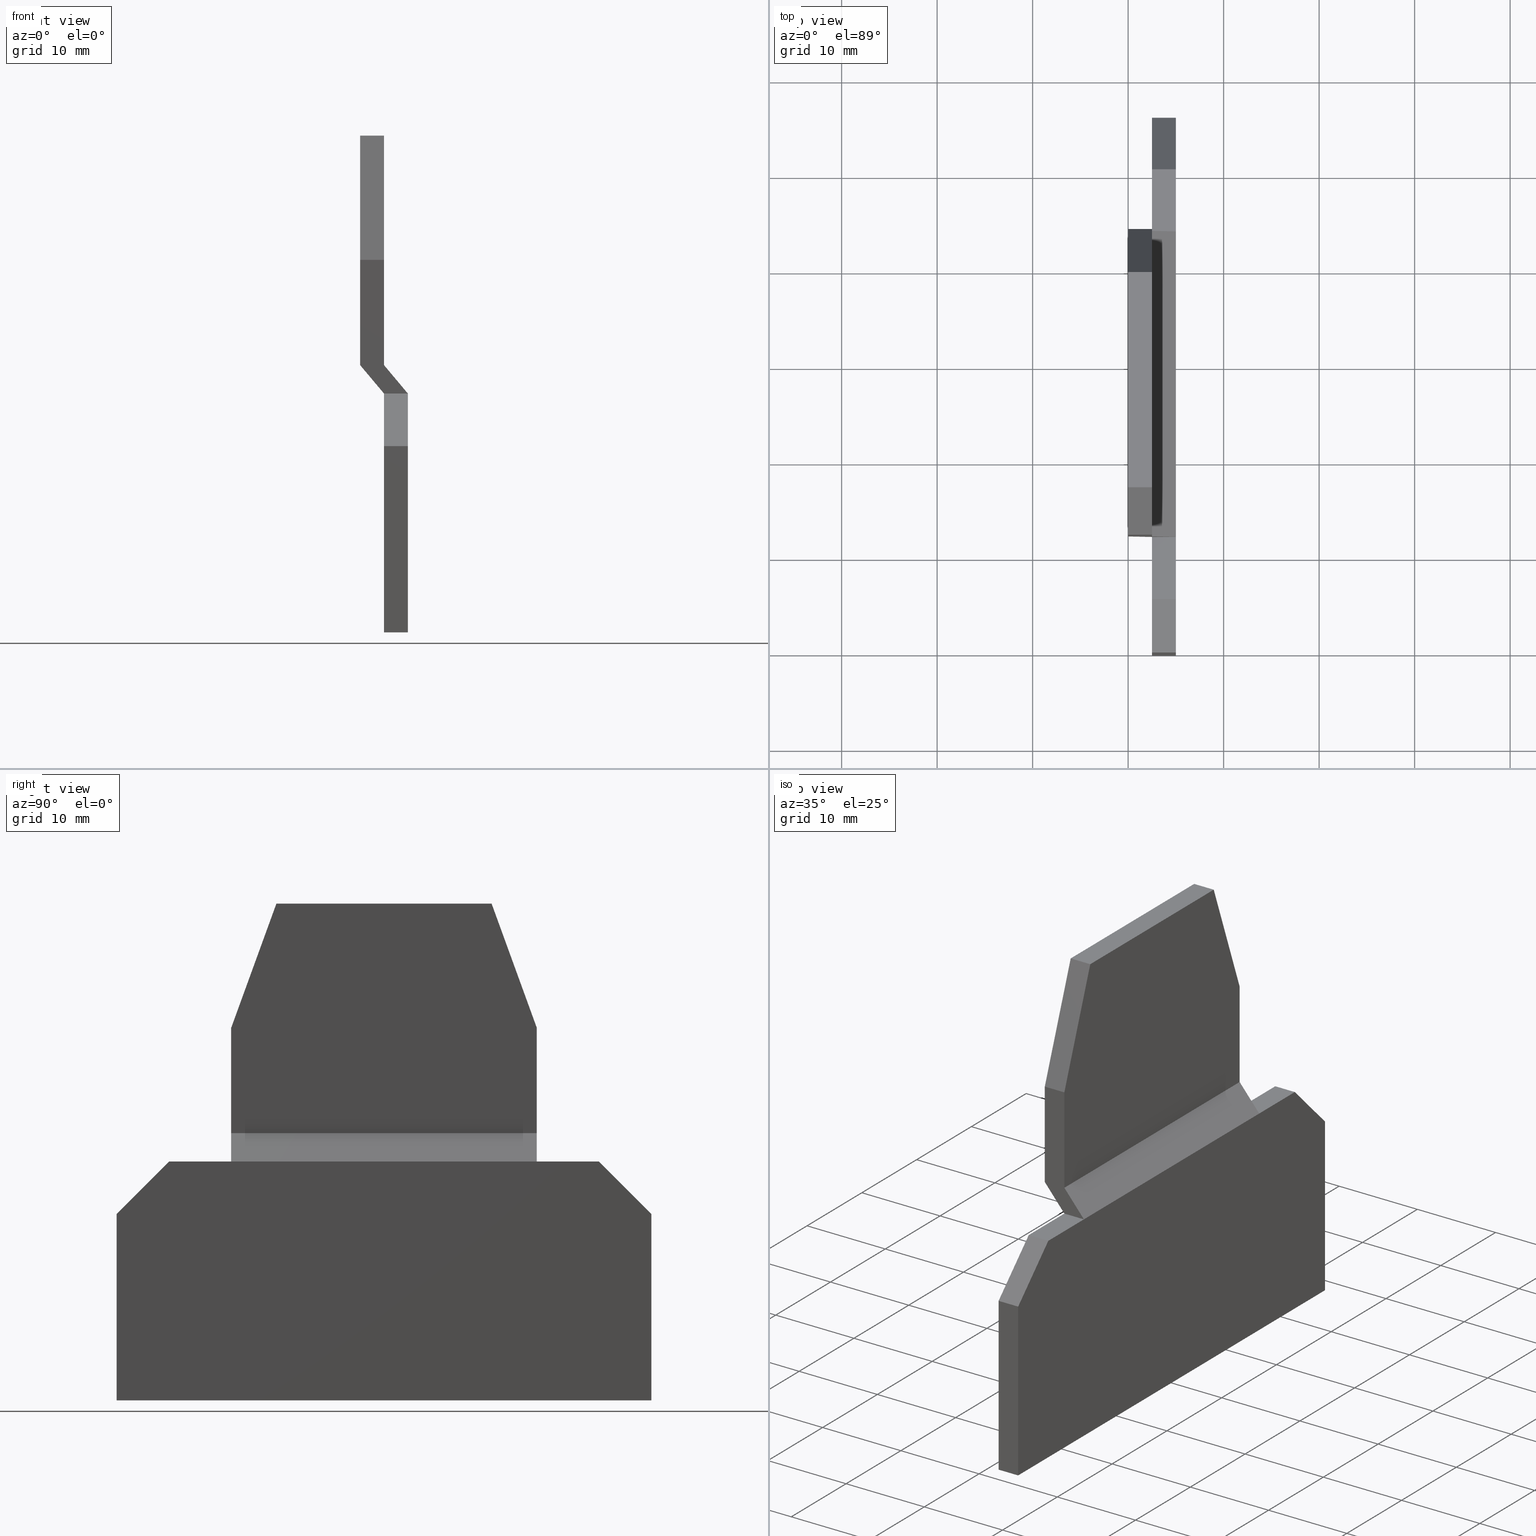
[diagram: canonical four-view strip — front | top / right | iso, engineering-drawing reading convention]
A machine part, canonical four-view strip (front | top / right | iso — engineering-drawing reading convention). The complete STEP part file that produces these views, byte-faithful:
ISO-10303-21;
HEADER;
FILE_DESCRIPTION(('Creo Elements/Direct Modeling STEP Export'),'2;1');
FILE_NAME(
'C:/temp/JobSpoolerServerData/JobServer Files/b36475c7-819c-4d4a-ab5f-5e
1cfe9fd886/work/output/model.stp','2020-06-26T15:39:03',(''),(''),
'Creo Elements/Direct Modeling STEP processor for AP214 (Solid Model)',
'Creo Elements/Direct Modeling 20.1A  29-Sep-2018 (C) Parametric Technol
ogy GmbH','');
FILE_SCHEMA(('AUTOMOTIVE_DESIGN { 1 0 10303 214 1 1 1 1 }'));
ENDSEC;
DATA;
#10=CARTESIAN_POINT('',(-5.33730665307594,34.6157933123737,
4.88498130835069E-15));
#20=DIRECTION('',(-0.,0.,1.));
#30=DIRECTION('',(0.,-1.,0.));
#40=AXIS2_PLACEMENT_3D('',#10,#20,#30);
#50=PLANE('',#40);
#60=CARTESIAN_POINT('',(0.00115534692405816,58.6364093308882,
4.88498130835069E-15));
#70=DIRECTION('',(-1.,0.,0.));
#80=VECTOR('',#70,1.);
#90=LINE('',#60,#80);
#100=CARTESIAN_POINT('',(33.9310803014635,58.6364093308882,
4.88498130835069E-15));
#110=VERTEX_POINT('',#100);
#120=CARTESIAN_POINT('',(11.3943063923844,58.6364093308882,
4.88498130835069E-15));
#130=VERTEX_POINT('',#120);
#140=EDGE_CURVE('',#110,#130,#90,.T.);
#150=ORIENTED_EDGE('',*,*,#140,.T.);
#160=CARTESIAN_POINT('',(55.2709350296005,0.00564033088821247,
4.88498130835069E-15));
#170=DIRECTION('',(-0.342020143325662,0.939692620785911,0.));
#180=VECTOR('',#170,1.);
#190=LINE('',#160,#180);
#200=CARTESIAN_POINT('',(38.6626933469241,45.6364093308882,
4.88498130835069E-15));
#210=VERTEX_POINT('',#200);
#220=EDGE_CURVE('',#210,#110,#190,.T.);
#230=ORIENTED_EDGE('',*,*,#220,.T.);
#240=CARTESIAN_POINT('',(38.6626933469241,0.00564033088821247,
4.88498130835069E-15));
#250=DIRECTION('',(0.,1.,0.));
#260=VECTOR('',#250,1.);
#270=LINE('',#240,#260);
#280=CARTESIAN_POINT('',(38.6626933469241,34.6157933123737,
4.88498130835069E-15));
#290=VERTEX_POINT('',#280);
#300=EDGE_CURVE('',#290,#210,#270,.T.);
#310=ORIENTED_EDGE('',*,*,#300,.T.);
#320=CARTESIAN_POINT('',(-5.33730665307594,34.6157933123737,
4.88498130835069E-15));
#330=DIRECTION('',(1.,0.,0.));
#340=VECTOR('',#330,1.);
#350=LINE('',#320,#340);
#360=CARTESIAN_POINT('',(6.66269334692405,34.6157933123737,
4.88498130835069E-15));
#370=VERTEX_POINT('',#360);
#380=EDGE_CURVE('',#370,#290,#350,.T.);
#390=ORIENTED_EDGE('',*,*,#380,.T.);
#400=CARTESIAN_POINT('',(6.66269334692405,0.00564033088821247,
4.88498130835069E-15));
#410=DIRECTION('',(0.,-1.,0.));
#420=VECTOR('',#410,1.);
#430=LINE('',#400,#420);
#440=CARTESIAN_POINT('',(6.66269334692405,45.6364093308882,
4.88498130835069E-15));
#450=VERTEX_POINT('',#440);
#460=EDGE_CURVE('',#450,#370,#430,.T.);
#470=ORIENTED_EDGE('',*,*,#460,.T.);
#480=CARTESIAN_POINT('',(-9.94554833575273,0.00564033088821247,
4.88498130835069E-15));
#490=DIRECTION('',(-0.342020143325662,-0.939692620785911,0.));
#500=VECTOR('',#490,1.);
#510=LINE('',#480,#500);
#520=EDGE_CURVE('',#130,#450,#510,.T.);
#530=ORIENTED_EDGE('',*,*,#520,.T.);
#540=EDGE_LOOP('',(#530,#470,#390,#310,#230,#150));
#550=FACE_OUTER_BOUND('',#540,.T.);
#560=ADVANCED_FACE('',(#550),#50,.T.);
#570=COLOUR_RGB('',0.560784339904785,0.588235318660736,0.600000023841858
);
#580=FILL_AREA_STYLE_COLOUR('',#570);
#590=FILL_AREA_STYLE('',(#580));
#600=SURFACE_STYLE_FILL_AREA(#590);
#610=SURFACE_SIDE_STYLE('',(#600));
#620=SURFACE_STYLE_USAGE(.BOTH.,#610);
#630=PRESENTATION_STYLE_ASSIGNMENT((#620));
#640=CARTESIAN_POINT('',(-5.33730665307594,31.6364093308882,-2.5));
#650=DIRECTION('',(0.,-0.642787609686539,0.766044443118978));
#660=DIRECTION('',(0.,-0.766044443118978,-0.642787609686539));
#670=AXIS2_PLACEMENT_3D('',#640,#650,#660);
#680=PLANE('',#670);
#690=ORIENTED_EDGE('',*,*,#380,.F.);
#700=CARTESIAN_POINT('',(38.6626933469241,0.00564033088821247,
-29.0413666017537));
#710=DIRECTION('',(0.,0.766044443118978,0.642787609686539));
#720=VECTOR('',#710,1.);
#730=LINE('',#700,#720);
#740=CARTESIAN_POINT('',(38.6626933469241,31.6364093308882,-2.5));
#750=VERTEX_POINT('',#740);
#760=EDGE_CURVE('',#750,#290,#730,.T.);
#770=ORIENTED_EDGE('',*,*,#760,.T.);
#780=CARTESIAN_POINT('',(-5.33730665307594,31.6364093308882,-2.5));
#790=DIRECTION('',(1.,0.,0.));
#800=VECTOR('',#790,1.);
#810=LINE('',#780,#800);
#820=CARTESIAN_POINT('',(6.66269334692405,31.6364093308882,-2.5));
#830=VERTEX_POINT('',#820);
#840=EDGE_CURVE('',#830,#750,#810,.T.);
#850=ORIENTED_EDGE('',*,*,#840,.T.);
#860=CARTESIAN_POINT('',(6.66269334692405,0.00564033088821247,
-29.0413666017537));
#870=DIRECTION('',(0.,-0.766044443118978,-0.642787609686539));
#880=VECTOR('',#870,1.);
#890=LINE('',#860,#880);
#900=EDGE_CURVE('',#370,#830,#890,.T.);
#910=ORIENTED_EDGE('',*,*,#900,.T.);
#920=EDGE_LOOP('',(#910,#850,#770,#690));
#930=FACE_OUTER_BOUND('',#920,.T.);
#940=ADVANCED_FACE('',(#930),#680,.T.);
#950=COLOUR_RGB('',0.560784339904785,0.588235318660736,0.600000023841858
);
#960=FILL_AREA_STYLE_COLOUR('',#950);
#970=FILL_AREA_STYLE('',(#960));
#980=SURFACE_STYLE_FILL_AREA(#970);
#990=SURFACE_SIDE_STYLE('',(#980));
#1000=SURFACE_STYLE_USAGE(.BOTH.,#990);
#1010=PRESENTATION_STYLE_ASSIGNMENT((#1000));
#1020=CARTESIAN_POINT('',(-5.33730665307594,34.6157933123737,-2.5));
#1030=DIRECTION('',(0.,0.642787609686539,-0.766044443118978));
#1040=DIRECTION('',(0.,0.766044443118978,0.642787609686539));
#1050=AXIS2_PLACEMENT_3D('',#1020,#1030,#1040);
#1060=PLANE('',#1050);
#1070=CARTESIAN_POINT('',(-5.33730665307594,31.6364093308882,-5.));
#1080=DIRECTION('',(1.,0.,0.));
#1090=VECTOR('',#1080,1.);
#1100=LINE('',#1070,#1090);
#1110=CARTESIAN_POINT('',(6.66269334692405,31.6364093308882,-5.));
#1120=VERTEX_POINT('',#1110);
#1130=CARTESIAN_POINT('',(38.6626933469241,31.6364093308882,-5.));
#1140=VERTEX_POINT('',#1130);
#1150=EDGE_CURVE('',#1120,#1140,#1100,.T.);
#1160=ORIENTED_EDGE('',*,*,#1150,.F.);
#1170=CARTESIAN_POINT('',(38.6626933469241,0.00564033088821247,
-31.5413666017537));
#1180=DIRECTION('',(0.,-0.766044443118978,-0.642787609686539));
#1190=VECTOR('',#1180,1.);
#1200=LINE('',#1170,#1190);
#1210=CARTESIAN_POINT('',(38.6626933469241,34.6157933123737,-2.5));
#1220=VERTEX_POINT('',#1210);
#1230=EDGE_CURVE('',#1220,#1140,#1200,.T.);
#1240=ORIENTED_EDGE('',*,*,#1230,.T.);
#1250=CARTESIAN_POINT('',(-5.33730665307594,34.6157933123737,-2.5));
#1260=DIRECTION('',(1.,0.,0.));
#1270=VECTOR('',#1260,1.);
#1280=LINE('',#1250,#1270);
#1290=CARTESIAN_POINT('',(6.66269334692405,34.6157933123737,-2.5));
#1300=VERTEX_POINT('',#1290);
#1310=EDGE_CURVE('',#1300,#1220,#1280,.T.);
#1320=ORIENTED_EDGE('',*,*,#1310,.T.);
#1330=CARTESIAN_POINT('',(6.66269334692405,0.00564033088821247,
-31.5413666017537));
#1340=DIRECTION('',(0.,0.766044443118978,0.642787609686539));
#1350=VECTOR('',#1340,1.);
#1360=LINE('',#1330,#1350);
#1370=EDGE_CURVE('',#1120,#1300,#1360,.T.);
#1380=ORIENTED_EDGE('',*,*,#1370,.T.);
#1390=EDGE_LOOP('',(#1380,#1320,#1240,#1160));
#1400=FACE_OUTER_BOUND('',#1390,.T.);
#1410=ADVANCED_FACE('',(#1400),#1060,.T.);
#1420=COLOUR_RGB('',0.560784339904785,0.588235318660736,
0.600000023841858);
#1430=FILL_AREA_STYLE_COLOUR('',#1420);
#1440=FILL_AREA_STYLE('',(#1430));
#1450=SURFACE_STYLE_FILL_AREA(#1440);
#1460=SURFACE_SIDE_STYLE('',(#1450));
#1470=SURFACE_STYLE_USAGE(.BOTH.,#1460);
#1480=PRESENTATION_STYLE_ASSIGNMENT((#1470));
#1490=CARTESIAN_POINT('',(34.1705653840396,57.9784294742139,-5.5000024))
;
#1500=DIRECTION('',(0.939692620785911,0.342020143325662,0.));
#1510=DIRECTION('',(0.342020143325662,-0.939692620785911,0.));
#1520=AXIS2_PLACEMENT_3D('',#1490,#1500,#1510);
#1530=PLANE('',#1520);
#1540=CARTESIAN_POINT('',(33.9310803014635,58.6364093308882,
3.99680288865056E-15));
#1550=DIRECTION('',(0.,0.,1.));
#1560=VECTOR('',#1550,1.);
#1570=LINE('',#1540,#1560);
#1580=CARTESIAN_POINT('',(33.9310803014635,58.6364093308882,-2.5));
#1590=VERTEX_POINT('',#1580);
#1600=EDGE_CURVE('',#1590,#110,#1570,.T.);
#1610=ORIENTED_EDGE('',*,*,#1600,.T.);
#1620=CARTESIAN_POINT('',(55.2709350296005,0.00564033088821247,-2.5));
#1630=DIRECTION('',(-0.342020143325662,0.939692620785911,0.));
#1640=VECTOR('',#1630,1.);
#1650=LINE('',#1620,#1640);
#1660=CARTESIAN_POINT('',(38.662693346924,45.6364093308882,-2.5));
#1670=VERTEX_POINT('',#1660);
#1680=EDGE_CURVE('',#1670,#1590,#1650,.T.);
#1690=ORIENTED_EDGE('',*,*,#1680,.T.);
#1700=CARTESIAN_POINT('',(38.6626933469241,45.6364093308882,-5.5000024))
;
#1710=DIRECTION('',(0.,0.,1.));
#1720=VECTOR('',#1710,1.);
#1730=LINE('',#1700,#1720);
#1740=EDGE_CURVE('',#1670,#210,#1730,.T.);
#1750=ORIENTED_EDGE('',*,*,#1740,.F.);
#1760=ORIENTED_EDGE('',*,*,#220,.F.);
#1770=EDGE_LOOP('',(#1760,#1750,#1690,#1610));
#1780=FACE_OUTER_BOUND('',#1770,.T.);
#1790=ADVANCED_FACE('',(#1780),#1530,.T.);
#1800=COLOUR_RGB('',0.560784339904785,0.588235318660736,
0.600000023841858);
#1810=FILL_AREA_STYLE_COLOUR('',#1800);
#1820=FILL_AREA_STYLE('',(#1810));
#1830=SURFACE_STYLE_FILL_AREA(#1820);
#1840=SURFACE_SIDE_STYLE('',(#1830));
#1850=SURFACE_STYLE_USAGE(.BOTH.,#1840);
#1860=PRESENTATION_STYLE_ASSIGNMENT((#1850));
#1870=CARTESIAN_POINT('',(50.6626933469241,23.8926663308882,-2.5));
#1880=DIRECTION('',(1.,0.,0.));
#1890=DIRECTION('',(0.,-1.,0.));
#1900=AXIS2_PLACEMENT_3D('',#1870,#1880,#1890);
#1910=PLANE('',#1900);
#1920=CARTESIAN_POINT('',(50.6626933469241,26.1364093308882,-2.5));
#1930=DIRECTION('',(0.,0.,-1.));
#1940=VECTOR('',#1930,1.);
#1950=LINE('',#1920,#1940);
#1960=CARTESIAN_POINT('',(50.6626933469241,26.1364093308882,-2.5));
#1970=VERTEX_POINT('',#1960);
#1980=CARTESIAN_POINT('',(50.6626933469241,26.1364093308882,-5.));
#1990=VERTEX_POINT('',#1980);
#2000=EDGE_CURVE('',#1970,#1990,#1950,.T.);
#2010=ORIENTED_EDGE('',*,*,#2000,.F.);
#2020=CARTESIAN_POINT('',(50.6626933469241,0.00564033088821247,-5.));
#2030=DIRECTION('',(0.,-1.,0.));
#2040=VECTOR('',#2030,1.);
#2050=LINE('',#2020,#2040);
#2060=CARTESIAN_POINT('',(50.6626933469241,6.63640933088821,-5.));
#2070=VERTEX_POINT('',#2060);
#2080=EDGE_CURVE('',#1990,#2070,#2050,.T.);
#2090=ORIENTED_EDGE('',*,*,#2080,.F.);
#2100=CARTESIAN_POINT('',(50.6626933469241,6.63640933088821,
3.99680288865056E-15));
#2110=DIRECTION('',(0.,0.,1.));
#2120=VECTOR('',#2110,1.);
#2130=LINE('',#2100,#2120);
#2140=CARTESIAN_POINT('',(50.6626933469241,6.63640933088821,-2.5));
#2150=VERTEX_POINT('',#2140);
#2160=EDGE_CURVE('',#2070,#2150,#2130,.T.);
#2170=ORIENTED_EDGE('',*,*,#2160,.F.);
#2180=CARTESIAN_POINT('',(50.6626933469241,16.0566153308882,-2.5));
#2190=DIRECTION('',(0.,1.,0.));
#2200=VECTOR('',#2190,1.);
#2210=LINE('',#2180,#2200);
#2220=EDGE_CURVE('',#2150,#1970,#2210,.T.);
#2230=ORIENTED_EDGE('',*,*,#2220,.F.);
#2240=EDGE_LOOP('',(#2230,#2170,#2090,#2010));
#2250=FACE_OUTER_BOUND('',#2240,.T.);
#2260=ADVANCED_FACE('',(#2250),#1910,.T.);
#2270=COLOUR_RGB('',0.560784339904785,0.588235318660736,
0.600000023841858);
#2280=FILL_AREA_STYLE_COLOUR('',#2270);
#2290=FILL_AREA_STYLE('',(#2280));
#2300=SURFACE_STYLE_FILL_AREA(#2290);
#2310=SURFACE_SIDE_STYLE('',(#2300));
#2320=SURFACE_STYLE_USAGE(.BOTH.,#2310);
#2330=PRESENTATION_STYLE_ASSIGNMENT((#2320));
#2340=CARTESIAN_POINT('',(12.0945139305945,58.6364093308882,-5.5000024))
;
#2350=DIRECTION('',(-0.,1.,0.));
#2360=DIRECTION('',(1.,0.,0.));
#2370=AXIS2_PLACEMENT_3D('',#2340,#2350,#2360);
#2380=PLANE('',#2370);
#2390=CARTESIAN_POINT('',(11.3943063923844,58.6364093308882,
3.99680288865056E-15));
#2400=DIRECTION('',(0.,0.,-1.));
#2410=VECTOR('',#2400,1.);
#2420=LINE('',#2390,#2410);
#2430=CARTESIAN_POINT('',(11.3943063923844,58.6364093308882,-2.5));
#2440=VERTEX_POINT('',#2430);
#2450=EDGE_CURVE('',#130,#2440,#2420,.T.);
#2460=ORIENTED_EDGE('',*,*,#2450,.F.);
#2470=CARTESIAN_POINT('',(0.00115534692405816,58.6364093308882,-2.5));
#2480=DIRECTION('',(-1.,0.,0.));
#2490=VECTOR('',#2480,1.);
#2500=LINE('',#2470,#2490);
#2510=EDGE_CURVE('',#1590,#2440,#2500,.T.);
#2520=ORIENTED_EDGE('',*,*,#2510,.T.);
#2530=ORIENTED_EDGE('',*,*,#1600,.F.);
#2540=ORIENTED_EDGE('',*,*,#140,.F.);
#2550=EDGE_LOOP('',(#2540,#2530,#2520,#2460));
#2560=FACE_OUTER_BOUND('',#2550,.T.);
#2570=ADVANCED_FACE('',(#2560),#2380,.T.);
#2580=COLOUR_RGB('',0.560784339904785,0.588235318660736,
0.600000023841858);
#2590=FILL_AREA_STYLE_COLOUR('',#2580);
#2600=FILL_AREA_STYLE('',(#2590));
#2610=SURFACE_STYLE_FILL_AREA(#2600);
#2620=SURFACE_SIDE_STYLE('',(#2610));
#2630=SURFACE_STYLE_USAGE(.BOTH.,#2620);
#2640=PRESENTATION_STYLE_ASSIGNMENT((#2630));
#2650=CARTESIAN_POINT('',(38.6626933469241,45.6364093308882,-5.5000024))
;
#2660=DIRECTION('',(1.,0.,0.));
#2670=DIRECTION('',(0.,-1.,0.));
#2680=AXIS2_PLACEMENT_3D('',#2650,#2660,#2670);
#2690=PLANE('',#2680);
#2700=ORIENTED_EDGE('',*,*,#1740,.T.);
#2710=CARTESIAN_POINT('',(38.6626933469241,0.00564033088821247,-2.5));
#2720=DIRECTION('',(0.,1.,0.));
#2730=VECTOR('',#2720,1.);
#2740=LINE('',#2710,#2730);
#2750=EDGE_CURVE('',#1220,#1670,#2740,.T.);
#2760=ORIENTED_EDGE('',*,*,#2750,.T.);
#2770=ORIENTED_EDGE('',*,*,#1230,.F.);
#2780=CARTESIAN_POINT('',(38.6626933469241,31.6364093308882,-5.5000024))
;
#2790=DIRECTION('',(0.,0.,1.));
#2800=VECTOR('',#2790,1.);
#2810=LINE('',#2780,#2800);
#2820=EDGE_CURVE('',#1140,#750,#2810,.T.);
#2830=ORIENTED_EDGE('',*,*,#2820,.F.);
#2840=ORIENTED_EDGE('',*,*,#760,.F.);
#2850=ORIENTED_EDGE('',*,*,#300,.F.);
#2860=EDGE_LOOP('',(#2850,#2840,#2830,#2770,#2760,#2700));
#2870=FACE_OUTER_BOUND('',#2860,.T.);
#2880=ADVANCED_FACE('',(#2870),#2690,.T.);
#2890=COLOUR_RGB('',0.560784339904785,0.588235318660736,
0.600000023841858);
#2900=FILL_AREA_STYLE_COLOUR('',#2890);
#2910=FILL_AREA_STYLE('',(#2900));
#2920=SURFACE_STYLE_FILL_AREA(#2910);
#2930=SURFACE_SIDE_STYLE('',(#2920));
#2940=SURFACE_STYLE_USAGE(.BOTH.,#2930);
#2950=PRESENTATION_STYLE_ASSIGNMENT((#2940));
#2960=CARTESIAN_POINT('',(50.6626933469241,26.1364093308882,-2.5));
#2970=DIRECTION('',(0.707106781186547,0.707106781186548,0.));
#2980=DIRECTION('',(0.707106781186548,-0.707106781186547,0.));
#2990=AXIS2_PLACEMENT_3D('',#2960,#2970,#2980);
#3000=PLANE('',#2990);
#3010=CARTESIAN_POINT('',(45.1626933469241,31.6364093308882,-2.5));
#3020=DIRECTION('',(0.,0.,-1.));
#3030=VECTOR('',#3020,1.);
#3040=LINE('',#3010,#3030);
#3050=CARTESIAN_POINT('',(45.162693346924,31.6364093308882,-2.5));
#3060=VERTEX_POINT('',#3050);
#3070=CARTESIAN_POINT('',(45.1626933469241,31.6364093308882,-5.));
#3080=VERTEX_POINT('',#3070);
#3090=EDGE_CURVE('',#3060,#3080,#3040,.T.);
#3100=ORIENTED_EDGE('',*,*,#3090,.F.);
#3110=CARTESIAN_POINT('',(45.1626933469241,31.6364093308882,-5.));
#3120=DIRECTION('',(0.707106781186548,-0.707106781186547,0.));
#3130=VECTOR('',#3120,1.);
#3140=LINE('',#3110,#3130);
#3150=EDGE_CURVE('',#3080,#1990,#3140,.T.);
#3160=ORIENTED_EDGE('',*,*,#3150,.F.);
#3170=ORIENTED_EDGE('',*,*,#2000,.T.);
#3180=CARTESIAN_POINT('',(45.1626933469241,31.6364093308882,-2.5));
#3190=DIRECTION('',(0.707106781186548,-0.707106781186547,0.));
#3200=VECTOR('',#3190,1.);
#3210=LINE('',#3180,#3200);
#3220=EDGE_CURVE('',#3060,#1970,#3210,.T.);
#3230=ORIENTED_EDGE('',*,*,#3220,.T.);
#3240=EDGE_LOOP('',(#3230,#3170,#3160,#3100));
#3250=FACE_OUTER_BOUND('',#3240,.T.);
#3260=ADVANCED_FACE('',(#3250),#3000,.T.);
#3270=COLOUR_RGB('',0.560784339904785,0.588235318660736,
0.600000023841858);
#3280=FILL_AREA_STYLE_COLOUR('',#3270);
#3290=FILL_AREA_STYLE('',(#3280));
#3300=SURFACE_STYLE_FILL_AREA(#3290);
#3310=SURFACE_SIDE_STYLE('',(#3300));
#3320=SURFACE_STYLE_USAGE(.BOTH.,#3310);
#3330=PRESENTATION_STYLE_ASSIGNMENT((#3320));
#3340=CARTESIAN_POINT('',(-5.33730665307595,7.63640933088821,-5.5000024)
);
#3350=DIRECTION('',(-1.,-1.61300449272099E-14,-0.));
#3360=DIRECTION('',(-1.61300449272099E-14,1.,0.));
#3370=AXIS2_PLACEMENT_3D('',#3340,#3350,#3360);
#3380=PLANE('',#3370);
#3390=CARTESIAN_POINT('',(-5.33730665307607,26.1364093308882,-2.5));
#3400=DIRECTION('',(0.,0.,-1.));
#3410=VECTOR('',#3400,1.);
#3420=LINE('',#3390,#3410);
#3430=CARTESIAN_POINT('',(-5.33730665307625,26.136409330888,-2.5));
#3440=VERTEX_POINT('',#3430);
#3450=CARTESIAN_POINT('',(-5.33730665307625,26.136409330888,-5.));
#3460=VERTEX_POINT('',#3450);
#3470=EDGE_CURVE('',#3440,#3460,#3420,.T.);
#3480=ORIENTED_EDGE('',*,*,#3470,.T.);
#3490=CARTESIAN_POINT('',(-5.33730665307606,14.7993093308882,-2.5));
#3500=DIRECTION('',(0.,1.,0.));
#3510=VECTOR('',#3500,1.);
#3520=LINE('',#3490,#3510);
#3530=CARTESIAN_POINT('',(-5.33730665307593,6.63640933088821,-2.5));
#3540=VERTEX_POINT('',#3530);
#3550=EDGE_CURVE('',#3540,#3440,#3520,.T.);
#3560=ORIENTED_EDGE('',*,*,#3550,.T.);
#3570=CARTESIAN_POINT('',(-5.33730665307593,6.63640933088821,
3.99680288865056E-15));
#3580=DIRECTION('',(0.,0.,-1.));
#3590=VECTOR('',#3580,1.);
#3600=LINE('',#3570,#3590);
#3610=CARTESIAN_POINT('',(-5.33730665307593,6.63640933088821,-5.));
#3620=VERTEX_POINT('',#3610);
#3630=EDGE_CURVE('',#3540,#3620,#3600,.T.);
#3640=ORIENTED_EDGE('',*,*,#3630,.F.);
#3650=CARTESIAN_POINT('',(-5.33730665307606,14.7993093308882,-5.));
#3660=DIRECTION('',(0.,1.,0.));
#3670=VECTOR('',#3660,1.);
#3680=LINE('',#3650,#3670);
#3690=EDGE_CURVE('',#3620,#3460,#3680,.T.);
#3700=ORIENTED_EDGE('',*,*,#3690,.F.);
#3710=EDGE_LOOP('',(#3700,#3640,#3560,#3480));
#3720=FACE_OUTER_BOUND('',#3710,.T.);
#3730=ADVANCED_FACE('',(#3720),#3380,.T.);
#3740=COLOUR_RGB('',0.560784339904785,0.588235318660736,
0.600000023841858);
#3750=FILL_AREA_STYLE_COLOUR('',#3740);
#3760=FILL_AREA_STYLE('',(#3750));
#3770=SURFACE_STYLE_FILL_AREA(#3760);
#3780=SURFACE_SIDE_STYLE('',(#3770));
#3790=SURFACE_STYLE_USAGE(.BOTH.,#3780);
#3800=PRESENTATION_STYLE_ASSIGNMENT((#3790));
#3810=CARTESIAN_POINT('',(47.9708484870258,20.1216803517703,-2.5));
#3820=DIRECTION('',(0.,0.,1.));
#3830=DIRECTION('',(1.,0.,0.));
#3840=AXIS2_PLACEMENT_3D('',#3810,#3820,#3830);
#3850=PLANE('',#3840);
#3860=ORIENTED_EDGE('',*,*,#3220,.F.);
#3870=ORIENTED_EDGE('',*,*,#2220,.T.);
#3880=CARTESIAN_POINT('',(0.00115534692405816,6.63640933088821,-2.5));
#3890=DIRECTION('',(1.,0.,0.));
#3900=VECTOR('',#3890,1.);
#3910=LINE('',#3880,#3900);
#3920=EDGE_CURVE('',#3540,#2150,#3910,.T.);
#3930=ORIENTED_EDGE('',*,*,#3920,.T.);
#3940=ORIENTED_EDGE('',*,*,#3550,.F.);
#3950=CARTESIAN_POINT('',(0.162693346923938,31.6364093308882,-2.5));
#3960=DIRECTION('',(0.707106781186548,0.707106781186547,0.));
#3970=VECTOR('',#3960,1.);
#3980=LINE('',#3950,#3970);
#3990=CARTESIAN_POINT('',(0.162693346923945,31.6364093308882,-2.5));
#4000=VERTEX_POINT('',#3990);
#4010=EDGE_CURVE('',#3440,#4000,#3980,.T.);
#4020=ORIENTED_EDGE('',*,*,#4010,.F.);
#4030=CARTESIAN_POINT('',(3.31749034692406,31.6364093308882,-2.5));
#4040=DIRECTION('',(1.,0.,0.));
#4050=VECTOR('',#4040,1.);
#4060=LINE('',#4030,#4050);
#4070=EDGE_CURVE('',#4000,#830,#4060,.T.);
#4080=ORIENTED_EDGE('',*,*,#4070,.F.);
#4090=ORIENTED_EDGE('',*,*,#840,.F.);
#4100=CARTESIAN_POINT('',(3.31749034692406,31.6364093308882,-2.5));
#4110=DIRECTION('',(1.,0.,0.));
#4120=VECTOR('',#4110,1.);
#4130=LINE('',#4100,#4120);
#4140=EDGE_CURVE('',#750,#3060,#4130,.T.);
#4150=ORIENTED_EDGE('',*,*,#4140,.F.);
#4160=EDGE_LOOP('',(#4150,#4090,#4080,#4020,#3940,#3930,#3870,#3860));
#4170=FACE_OUTER_BOUND('',#4160,.T.);
#4180=ADVANCED_FACE('',(#4170),#3850,.T.);
#4190=COLOUR_RGB('',0.560784339904785,0.588235318660736,
0.600000023841858);
#4200=FILL_AREA_STYLE_COLOUR('',#4190);
#4210=FILL_AREA_STYLE('',(#4200));
#4220=SURFACE_STYLE_FILL_AREA(#4210);
#4230=SURFACE_SIDE_STYLE('',(#4220));
#4240=SURFACE_STYLE_USAGE(.BOTH.,#4230);
#4250=PRESENTATION_STYLE_ASSIGNMENT((#4240));
#4260=CARTESIAN_POINT('',(38.6626933469241,31.6364093308882,-5.5000024))
;
#4270=DIRECTION('',(-0.,1.,0.));
#4280=DIRECTION('',(1.,0.,0.));
#4290=AXIS2_PLACEMENT_3D('',#4260,#4270,#4280);
#4300=PLANE('',#4290);
#4310=ORIENTED_EDGE('',*,*,#2820,.T.);
#4320=CARTESIAN_POINT('',(3.31749034692406,31.6364093308882,-5.));
#4330=DIRECTION('',(1.,0.,0.));
#4340=VECTOR('',#4330,1.);
#4350=LINE('',#4320,#4340);
#4360=EDGE_CURVE('',#1140,#3080,#4350,.T.);
#4370=ORIENTED_EDGE('',*,*,#4360,.F.);
#4380=ORIENTED_EDGE('',*,*,#3090,.T.);
#4390=ORIENTED_EDGE('',*,*,#4140,.T.);
#4400=EDGE_LOOP('',(#4390,#4380,#4370,#4310));
#4410=FACE_OUTER_BOUND('',#4400,.T.);
#4420=ADVANCED_FACE('',(#4410),#4300,.T.);
#4430=COLOUR_RGB('',0.560784339904785,0.588235318660736,
0.600000023841858);
#4440=FILL_AREA_STYLE_COLOUR('',#4430);
#4450=FILL_AREA_STYLE('',(#4440));
#4460=SURFACE_STYLE_FILL_AREA(#4450);
#4470=SURFACE_SIDE_STYLE('',(#4460));
#4480=SURFACE_STYLE_USAGE(.BOTH.,#4470);
#4490=PRESENTATION_STYLE_ASSIGNMENT((#4480));
#4500=CARTESIAN_POINT('',(49.6626933469241,6.63640933088821,-5.5000024))
;
#4510=DIRECTION('',(-0.,-1.,-0.));
#4520=DIRECTION('',(-1.,0.,0.));
#4530=AXIS2_PLACEMENT_3D('',#4500,#4510,#4520);
#4540=PLANE('',#4530);
#4550=ORIENTED_EDGE('',*,*,#3630,.T.);
#4560=ORIENTED_EDGE('',*,*,#3920,.F.);
#4570=ORIENTED_EDGE('',*,*,#2160,.T.);
#4580=CARTESIAN_POINT('',(0.00115534692405816,6.63640933088821,-5.));
#4590=DIRECTION('',(-1.,0.,0.));
#4600=VECTOR('',#4590,1.);
#4610=LINE('',#4580,#4600);
#4620=EDGE_CURVE('',#2070,#3620,#4610,.T.);
#4630=ORIENTED_EDGE('',*,*,#4620,.F.);
#4640=EDGE_LOOP('',(#4630,#4570,#4560,#4550));
#4650=FACE_OUTER_BOUND('',#4640,.T.);
#4660=ADVANCED_FACE('',(#4650),#4540,.T.);
#4670=COLOUR_RGB('',0.560784339904785,0.588235318660736,
0.600000023841858);
#4680=FILL_AREA_STYLE_COLOUR('',#4670);
#4690=FILL_AREA_STYLE('',(#4680));
#4700=SURFACE_STYLE_FILL_AREA(#4690);
#4710=SURFACE_SIDE_STYLE('',(#4700));
#4720=SURFACE_STYLE_USAGE(.BOTH.,#4710);
#4730=PRESENTATION_STYLE_ASSIGNMENT((#4720));
#4740=CARTESIAN_POINT('',(47.9708484870258,20.1216803517703,-5.));
#4750=DIRECTION('',(0.,0.,1.));
#4760=DIRECTION('',(1.,0.,0.));
#4770=AXIS2_PLACEMENT_3D('',#4740,#4750,#4760);
#4780=PLANE('',#4770);
#4790=ORIENTED_EDGE('',*,*,#1150,.T.);
#4800=CARTESIAN_POINT('',(0.00115534692405816,31.6364093308882,-5.));
#4810=DIRECTION('',(1.,0.,0.));
#4820=VECTOR('',#4810,1.);
#4830=LINE('',#4800,#4820);
#4840=CARTESIAN_POINT('',(0.162693346923945,31.6364093308882,-5.));
#4850=VERTEX_POINT('',#4840);
#4860=EDGE_CURVE('',#4850,#1120,#4830,.T.);
#4870=ORIENTED_EDGE('',*,*,#4860,.T.);
#4880=CARTESIAN_POINT('',(0.162693346923938,31.6364093308882,-5.));
#4890=DIRECTION('',(0.707106781186548,0.707106781186547,0.));
#4900=VECTOR('',#4890,1.);
#4910=LINE('',#4880,#4900);
#4920=EDGE_CURVE('',#3460,#4850,#4910,.T.);
#4930=ORIENTED_EDGE('',*,*,#4920,.T.);
#4940=ORIENTED_EDGE('',*,*,#3690,.T.);
#4950=ORIENTED_EDGE('',*,*,#4620,.T.);
#4960=ORIENTED_EDGE('',*,*,#2080,.T.);
#4970=ORIENTED_EDGE('',*,*,#3150,.T.);
#4980=ORIENTED_EDGE('',*,*,#4360,.T.);
#4990=EDGE_LOOP('',(#4980,#4970,#4960,#4950,#4940,#4930,#4870,#4790));
#5000=FACE_OUTER_BOUND('',#4990,.T.);
#5010=ADVANCED_FACE('',(#5000),#4780,.F.);
#5020=COLOUR_RGB('',0.560784339904785,0.588235318660736,
0.600000023841858);
#5030=FILL_AREA_STYLE_COLOUR('',#5020);
#5040=FILL_AREA_STYLE('',(#5030));
#5050=SURFACE_STYLE_FILL_AREA(#5040);
#5060=SURFACE_SIDE_STYLE('',(#5050));
#5070=SURFACE_STYLE_USAGE(.BOTH.,#5060);
#5080=PRESENTATION_STYLE_ASSIGNMENT((#5070));
#5090=CARTESIAN_POINT('',(6.66269334692405,31.6364093308882,-5.5000024))
;
#5100=DIRECTION('',(-1.,0.,0.));
#5110=DIRECTION('',(0.,1.,0.));
#5120=AXIS2_PLACEMENT_3D('',#5090,#5100,#5110);
#5130=PLANE('',#5120);
#5140=CARTESIAN_POINT('',(6.66269334692405,0.00564033088821247,-2.5));
#5150=DIRECTION('',(0.,-1.,0.));
#5160=VECTOR('',#5150,1.);
#5170=LINE('',#5140,#5160);
#5180=CARTESIAN_POINT('',(6.66269334692387,45.6364093308883,-2.5));
#5190=VERTEX_POINT('',#5180);
#5200=EDGE_CURVE('',#5190,#1300,#5170,.T.);
#5210=ORIENTED_EDGE('',*,*,#5200,.T.);
#5220=CARTESIAN_POINT('',(6.66269334692405,45.6364093308882,-5.5000024))
;
#5230=DIRECTION('',(0.,0.,1.));
#5240=VECTOR('',#5230,1.);
#5250=LINE('',#5220,#5240);
#5260=EDGE_CURVE('',#5190,#450,#5250,.T.);
#5270=ORIENTED_EDGE('',*,*,#5260,.F.);
#5280=ORIENTED_EDGE('',*,*,#460,.F.);
#5290=ORIENTED_EDGE('',*,*,#900,.F.);
#5300=CARTESIAN_POINT('',(6.66269334692405,31.6364093308882,-5.5000024))
;
#5310=DIRECTION('',(0.,0.,1.));
#5320=VECTOR('',#5310,1.);
#5330=LINE('',#5300,#5320);
#5340=EDGE_CURVE('',#1120,#830,#5330,.T.);
#5350=ORIENTED_EDGE('',*,*,#5340,.T.);
#5360=ORIENTED_EDGE('',*,*,#1370,.F.);
#5370=EDGE_LOOP('',(#5360,#5350,#5290,#5280,#5270,#5210));
#5380=FACE_OUTER_BOUND('',#5370,.T.);
#5390=ADVANCED_FACE('',(#5380),#5130,.T.);
#5400=COLOUR_RGB('',0.560784339904785,0.588235318660736,
0.600000023841858);
#5410=FILL_AREA_STYLE_COLOUR('',#5400);
#5420=FILL_AREA_STYLE('',(#5410));
#5430=SURFACE_STYLE_FILL_AREA(#5420);
#5440=SURFACE_SIDE_STYLE('',(#5430));
#5450=SURFACE_STYLE_USAGE(.BOTH.,#5440);
#5460=PRESENTATION_STYLE_ASSIGNMENT((#5450));
#5470=CARTESIAN_POINT('',(2.40004934692406,31.6364093308882,-2.5));
#5480=DIRECTION('',(-0.,1.,0.));
#5490=DIRECTION('',(1.,0.,0.));
#5500=AXIS2_PLACEMENT_3D('',#5470,#5480,#5490);
#5510=PLANE('',#5500);
#5520=ORIENTED_EDGE('',*,*,#5340,.F.);
#5530=ORIENTED_EDGE('',*,*,#4070,.T.);
#5540=CARTESIAN_POINT('',(0.162693346923945,31.6364093308882,-2.5));
#5550=DIRECTION('',(0.,0.,-1.));
#5560=VECTOR('',#5550,1.);
#5570=LINE('',#5540,#5560);
#5580=EDGE_CURVE('',#4000,#4850,#5570,.T.);
#5590=ORIENTED_EDGE('',*,*,#5580,.F.);
#5600=ORIENTED_EDGE('',*,*,#4860,.F.);
#5610=EDGE_LOOP('',(#5600,#5590,#5530,#5520));
#5620=FACE_OUTER_BOUND('',#5610,.T.);
#5630=ADVANCED_FACE('',(#5620),#5510,.T.);
#5640=COLOUR_RGB('',0.560784339904785,0.588235318660736,
0.600000023841858);
#5650=FILL_AREA_STYLE_COLOUR('',#5640);
#5660=FILL_AREA_STYLE('',(#5650));
#5670=SURFACE_STYLE_FILL_AREA(#5660);
#5680=SURFACE_SIDE_STYLE('',(#5670));
#5690=SURFACE_STYLE_USAGE(.BOTH.,#5680);
#5700=PRESENTATION_STYLE_ASSIGNMENT((#5690));
#5710=CARTESIAN_POINT('',(10.9788964371063,57.495079858945,-5.5000024));
#5720=DIRECTION('',(-0.939692620785911,0.342020143325662,0.));
#5730=DIRECTION('',(0.342020143325662,0.939692620785911,0.));
#5740=AXIS2_PLACEMENT_3D('',#5710,#5720,#5730);
#5750=PLANE('',#5740);
#5760=ORIENTED_EDGE('',*,*,#5260,.T.);
#5770=CARTESIAN_POINT('',(-9.94554833575273,0.00564033088821247,-2.5));
#5780=DIRECTION('',(-0.342020143325662,-0.939692620785911,0.));
#5790=VECTOR('',#5780,1.);
#5800=LINE('',#5770,#5790);
#5810=EDGE_CURVE('',#2440,#5190,#5800,.T.);
#5820=ORIENTED_EDGE('',*,*,#5810,.T.);
#5830=ORIENTED_EDGE('',*,*,#2450,.T.);
#5840=ORIENTED_EDGE('',*,*,#520,.F.);
#5850=EDGE_LOOP('',(#5840,#5830,#5820,#5760));
#5860=FACE_OUTER_BOUND('',#5850,.T.);
#5870=ADVANCED_FACE('',(#5860),#5750,.T.);
#5880=COLOUR_RGB('',0.560784339904785,0.588235318660736,
0.600000023841858);
#5890=FILL_AREA_STYLE_COLOUR('',#5880);
#5900=FILL_AREA_STYLE('',(#5890));
#5910=SURFACE_STYLE_FILL_AREA(#5900);
#5920=SURFACE_SIDE_STYLE('',(#5910));
#5930=SURFACE_STYLE_USAGE(.BOTH.,#5920);
#5940=PRESENTATION_STYLE_ASSIGNMENT((#5930));
#5950=CARTESIAN_POINT('',(0.162693346923945,31.6364093308882,-2.5));
#5960=DIRECTION('',(-0.707106781186547,0.707106781186548,0.));
#5970=DIRECTION('',(0.707106781186548,0.707106781186547,0.));
#5980=AXIS2_PLACEMENT_3D('',#5950,#5960,#5970);
#5990=PLANE('',#5980);
#6000=ORIENTED_EDGE('',*,*,#3470,.F.);
#6010=ORIENTED_EDGE('',*,*,#4920,.F.);
#6020=ORIENTED_EDGE('',*,*,#5580,.T.);
#6030=ORIENTED_EDGE('',*,*,#4010,.T.);
#6040=EDGE_LOOP('',(#6030,#6020,#6010,#6000));
#6050=FACE_OUTER_BOUND('',#6040,.T.);
#6060=ADVANCED_FACE('',(#6050),#5990,.T.);
#6070=COLOUR_RGB('',0.560784339904785,0.588235318660736,
0.600000023841858);
#6080=FILL_AREA_STYLE_COLOUR('',#6070);
#6090=FILL_AREA_STYLE('',(#6080));
#6100=SURFACE_STYLE_FILL_AREA(#6090);
#6110=SURFACE_SIDE_STYLE('',(#6100));
#6120=SURFACE_STYLE_USAGE(.BOTH.,#6110);
#6130=PRESENTATION_STYLE_ASSIGNMENT((#6120));
#6140=CARTESIAN_POINT('',(34.1685887267167,39.2056796250179,-2.5));
#6150=DIRECTION('',(0.,0.,1.));
#6160=DIRECTION('',(1.,0.,0.));
#6170=AXIS2_PLACEMENT_3D('',#6140,#6150,#6160);
#6180=PLANE('',#6170);
#6190=ORIENTED_EDGE('',*,*,#5200,.F.);
#6200=ORIENTED_EDGE('',*,*,#1310,.F.);
#6210=ORIENTED_EDGE('',*,*,#2750,.F.);
#6220=ORIENTED_EDGE('',*,*,#1680,.F.);
#6230=ORIENTED_EDGE('',*,*,#2510,.F.);
#6240=ORIENTED_EDGE('',*,*,#5810,.F.);
#6250=EDGE_LOOP('',(#6240,#6230,#6220,#6210,#6200,#6190));
#6260=FACE_OUTER_BOUND('',#6250,.T.);
#6270=ADVANCED_FACE('',(#6260),#6180,.F.);
#6280=COLOUR_RGB('',0.560784339904785,0.588235318660736,
0.600000023841858);
#6290=FILL_AREA_STYLE_COLOUR('',#6280);
#6300=FILL_AREA_STYLE('',(#6290));
#6310=SURFACE_STYLE_FILL_AREA(#6300);
#6320=SURFACE_SIDE_STYLE('',(#6310));
#6330=SURFACE_STYLE_USAGE(.BOTH.,#6320);
#6340=PRESENTATION_STYLE_ASSIGNMENT((#6330));
#6350=CLOSED_SHELL('',(#5390,#5630,#5870,#6060,#6270,#560,#940,#1410,
#1790,#2260,#2570,#2880,#3260,#3730,#4180,#4420,#4660,#5010));
#6360=MANIFOLD_SOLID_BREP('',#6350);
#6370=CARTESIAN_POINT('',(0.,0.,0.));
#6380=DIRECTION('',(0.,0.,1.));
#6390=DIRECTION('',(1.,0.,0.));
#6400=AXIS2_PLACEMENT_3D('',#6370,#6380,#6390);
#6410=APPLICATION_CONTEXT(' ');
#6420=APPLICATION_PROTOCOL_DEFINITION(' ','automotive_design',1998,#6410
);
#6430=PRODUCT_CONTEXT('',#6410,'mechanical');
#6440=PRODUCT_DEFINITION_CONTEXT('part definition',#6410,'design');
#6450=PRODUCT('D_UKK_3_5-select','D_UKK_3_5-select','',(#6430));
#6460=PRODUCT_RELATED_PRODUCT_CATEGORY('part',' ',(#6450));
#6470=PRODUCT_DEFINITION_FORMATION_WITH_SPECIFIED_SOURCE('','',#6450,
.BOUGHT.);
#6480=PRODUCT_DEFINITION('',' ',#6470,#6440);
#6490=PRODUCT_DEFINITION_SHAPE('','',#6480);
#6500=DIMENSIONAL_EXPONENTS(1.,0.,0.,0.,0.,0.,0.);
#6510=DIMENSIONAL_EXPONENTS(0.,0.,0.,0.,0.,0.,0.);
#6520=DIMENSIONAL_EXPONENTS(0.,0.,0.,0.,0.,0.,0.);
#6530=(LENGTH_UNIT() NAMED_UNIT(*) SI_UNIT(.MILLI.,.METRE.));
#6540=(NAMED_UNIT(*) PLANE_ANGLE_UNIT() SI_UNIT($,.RADIAN.));
#6550=(NAMED_UNIT(*) SI_UNIT($,.STERADIAN.) SOLID_ANGLE_UNIT());
#6560=(GEOMETRIC_REPRESENTATION_CONTEXT(3) 
GLOBAL_UNCERTAINTY_ASSIGNED_CONTEXT((#6570)) 
GLOBAL_UNIT_ASSIGNED_CONTEXT((#6530,#6540,#6550)) REPRESENTATION_CONTEXT
('',''));
#6570=UNCERTAINTY_MEASURE_WITH_UNIT(LENGTH_MEASURE(1.E-6),#6530,
'distance_accuracy_value','maximum gap value');
#6580=ADVANCED_BREP_SHAPE_REPRESENTATION('',(#6400,#6360),#6560);
#6590=SHAPE_DEFINITION_REPRESENTATION(#6490,#6580);
#6600=COLOUR_RGB('',0.560784339904785,0.588235318660736,
0.600000023841858);
#6610=FILL_AREA_STYLE_COLOUR('',#6600);
#6620=FILL_AREA_STYLE('',(#6610));
#6630=SURFACE_STYLE_FILL_AREA(#6620);
#6640=SURFACE_SIDE_STYLE('',(#6630));
#6650=SURFACE_STYLE_USAGE(.BOTH.,#6640);
#6660=PRESENTATION_STYLE_ASSIGNMENT((#6650));
#6670=STYLED_ITEM('',(#6660),#6360);
#6680=OVER_RIDING_STYLED_ITEM('',(#630),#560,#6670);
#6690=OVER_RIDING_STYLED_ITEM('',(#1010),#940,#6670);
#6700=OVER_RIDING_STYLED_ITEM('',(#1480),#1410,#6670);
#6710=OVER_RIDING_STYLED_ITEM('',(#1860),#1790,#6670);
#6720=OVER_RIDING_STYLED_ITEM('',(#2330),#2260,#6670);
#6730=OVER_RIDING_STYLED_ITEM('',(#2640),#2570,#6670);
#6740=OVER_RIDING_STYLED_ITEM('',(#2950),#2880,#6670);
#6750=OVER_RIDING_STYLED_ITEM('',(#3330),#3260,#6670);
#6760=OVER_RIDING_STYLED_ITEM('',(#3800),#3730,#6670);
#6770=OVER_RIDING_STYLED_ITEM('',(#4250),#4180,#6670);
#6780=OVER_RIDING_STYLED_ITEM('',(#4490),#4420,#6670);
#6790=OVER_RIDING_STYLED_ITEM('',(#4730),#4660,#6670);
#6800=OVER_RIDING_STYLED_ITEM('',(#5080),#5010,#6670);
#6810=OVER_RIDING_STYLED_ITEM('',(#5460),#5390,#6670);
#6820=OVER_RIDING_STYLED_ITEM('',(#5700),#5630,#6670);
#6830=OVER_RIDING_STYLED_ITEM('',(#5940),#5870,#6670);
#6840=OVER_RIDING_STYLED_ITEM('',(#6130),#6060,#6670);
#6850=OVER_RIDING_STYLED_ITEM('',(#6340),#6270,#6670);
#6860=DRAUGHTING_MODEL('',(#6670,#6680,#6690,#6700,#6710,#6720,#6730,
#6740,#6750,#6760,#6770,#6780,#6790,#6800,#6810,#6820,#6830,#6840,#6850)
,#6560);
#6870=CARTESIAN_POINT('',(-4.70734562441066E-14,50.6626933469241,
-6.63640933088836));
#6880=DIRECTION('',(-1.,-7.63278329429795E-16,-1.14423774522204E-17));
#6890=DIRECTION('',(7.63278329429795E-16,-1.,-7.63278329429793E-16));
#6900=AXIS2_PLACEMENT_3D('',#6870,#6880,#6890);
#6910=ITEM_DEFINED_TRANSFORMATION('D_UKK_3_5-select','',#6400,#6900);
#6920=APPLICATION_CONTEXT(' ');
#6930=APPLICATION_PROTOCOL_DEFINITION(' ','automotive_design',1998,#6920
);
#6940=PRODUCT_CONTEXT('',#6920,'mechanical');
#6950=PRODUCT_DEFINITION_CONTEXT('part definition',#6920,'design');
#6960=PRODUCT('D_UKK_3_5-select','D_UKK_3_5-select','',(#6940));
#6970=PRODUCT_RELATED_PRODUCT_CATEGORY('part',' ',(#6960));
#6980=PRODUCT_DEFINITION_FORMATION_WITH_SPECIFIED_SOURCE('','',#6960,
.BOUGHT.);
#6990=PRODUCT_DEFINITION('',' ',#6980,#6950);
#7000=PRODUCT_DEFINITION_SHAPE('','',#6990);
#7010=DIMENSIONAL_EXPONENTS(1.,0.,0.,0.,0.,0.,0.);
#7020=DIMENSIONAL_EXPONENTS(0.,0.,0.,0.,0.,0.,0.);
#7030=DIMENSIONAL_EXPONENTS(0.,0.,0.,0.,0.,0.,0.);
#7040=(LENGTH_UNIT() NAMED_UNIT(*) SI_UNIT(.MILLI.,.METRE.));
#7050=(NAMED_UNIT(*) PLANE_ANGLE_UNIT() SI_UNIT($,.RADIAN.));
#7060=(NAMED_UNIT(*) SI_UNIT($,.STERADIAN.) SOLID_ANGLE_UNIT());
#7070=(GEOMETRIC_REPRESENTATION_CONTEXT(3) 
GLOBAL_UNCERTAINTY_ASSIGNED_CONTEXT((#7080)) 
GLOBAL_UNIT_ASSIGNED_CONTEXT((#7040,#7050,#7060)) REPRESENTATION_CONTEXT
('',''));
#7080=UNCERTAINTY_MEASURE_WITH_UNIT(LENGTH_MEASURE(1.E-6),#7040,
'distance_accuracy_value','maximum gap value');
#7090=SHAPE_REPRESENTATION('',(#6400,#6900),#7070);
#7100=SHAPE_DEFINITION_REPRESENTATION(#7000,#7090);
#7110=(REPRESENTATION_RELATIONSHIP('','',#6580,#7090) 
REPRESENTATION_RELATIONSHIP_WITH_TRANSFORMATION(#6910) 
SHAPE_REPRESENTATION_RELATIONSHIP());
#7120=NEXT_ASSEMBLY_USAGE_OCCURRENCE('1','','D_UKK_3_5-select',#6990,
#6480,'');
#7130=PRODUCT_DEFINITION_SHAPE('','',#7120);
#7140=CONTEXT_DEPENDENT_SHAPE_REPRESENTATION(#7110,#7130);
ENDSEC;
END-ISO-10303-21;
